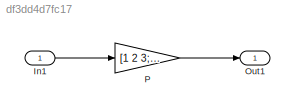
MODEL slx_df3dd4d7fc17
KIND model
CONFIG AbsTol = auto
CONFIG EnableMultiTasking = off
CONFIG FixedStep = auto
CONFIG MaxStep = auto
CONFIG MinStep = auto
CONFIG RelTol = 1e-3
CONFIG SampleTimeConstraint = Unconstrained
CONFIG Solver = FixedStepDiscrete
CONFIG SolverName = FixedStepDiscrete
CONFIG StartTime = 0.0
CONFIG StopTime = 10.0
BLOCK [Inport] In1
  IconDisplay = Port number
  PortDimensions = [1,3]
BLOCK [Outport] Out1
  IconDisplay = Port number
BLOCK [Gain] P
  Gain = [1 2 3;4 5 6]
  LockScale = on
  Multiplication = Matrix(K*u) (u vector)
  OutDataTypeStr = int16
  OutMax = 100
  OutMin = 1.
  ParamDataTypeStr = uint32
  RndMeth = Simplest
LINE In1:1 -> P:1
LINE P:1 -> Out1:1
